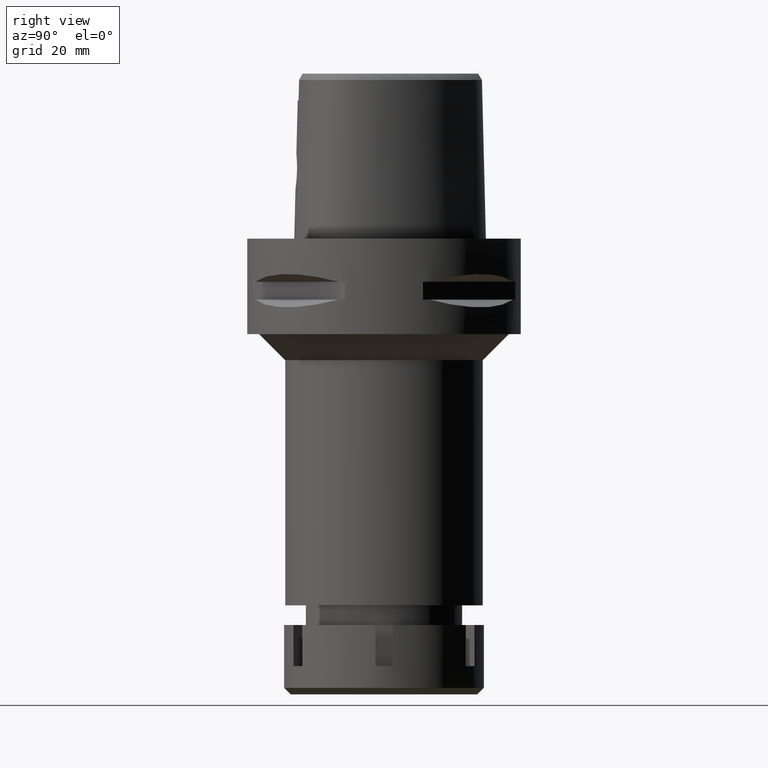
[diagram: clean part render]
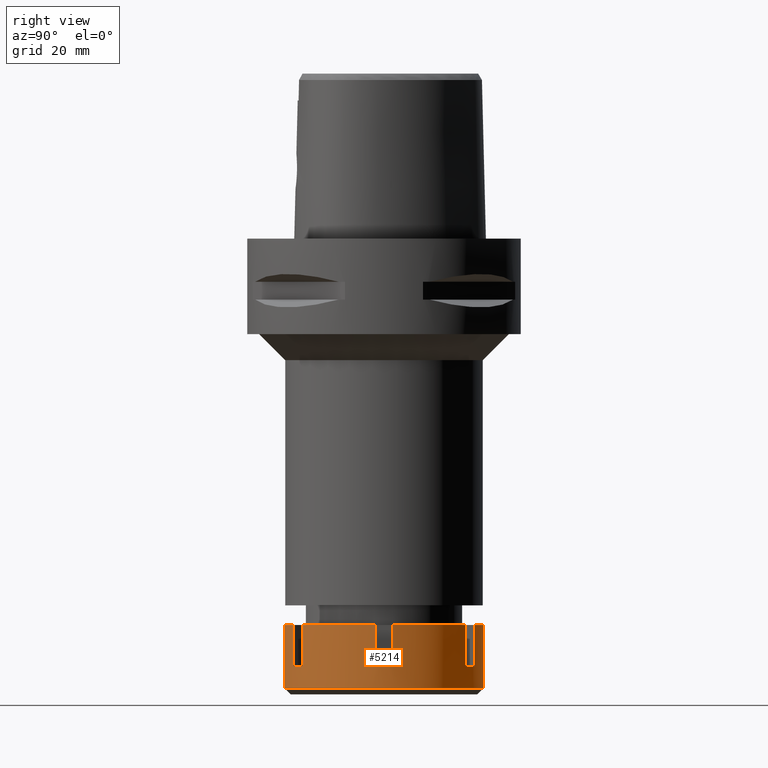
[diagram: same view with one face highlighted and labeled with its STEP entity id]
A machine part, right view. The second image highlights one B-rep face of the part: STEP entity #5214.
In plain terms, the highlighted cylindrical surface (partial cylindrical patch) has radius 23 mm, axis along (0, 0, -1).
Its self-contained STEP definition (entity closure, byte-faithful):
#37 = CIRCLE ( 'NONE', #5445, 23.00000000000000355 ) ;
#148 = VERTEX_POINT ( 'NONE', #921 ) ;
#167 = CARTESIAN_POINT ( 'NONE',  ( 13.18849004495999999, -18.84313483298000236, -9.500000000000000000 ) ) ;
#170 = CARTESIAN_POINT ( 'NONE',  ( 0.0000000000000000000, 23.00000000000000000, -14.50000000000000000 ) ) ;
#206 = VECTOR ( 'NONE', #2371, 1000.000000000000000 ) ;
#248 = LINE ( 'NONE', #4847, #206 ) ;
#267 = EDGE_CURVE ( 'NONE', #4211, #290, #2189, .T. ) ;
#290 = VERTEX_POINT ( 'NONE', #170 ) ;
#293 = EDGE_CURVE ( 'NONE', #4790, #713, #1665, .T. ) ;
#301 = AXIS2_PLACEMENT_3D ( 'NONE', #2869, #2781, #5415 ) ;
#311 = DIRECTION ( 'NONE',  ( 0.0000000000000000000, 0.0000000000000000000, -1.000000000000000000 ) ) ;
#316 = DIRECTION ( 'NONE',  ( 0.0000000000000000000, 0.0000000000000000000, -1.000000000000000000 ) ) ;
#428 = CARTESIAN_POINT ( 'NONE',  ( 9.724388429822001356, 20.84313483297999881, -9.500000000000000000 ) ) ;
#499 = DIRECTION ( 'NONE',  ( 0.9962121075990957308, 0.08695652173912968297, 0.0000000000000000000 ) ) ;
#524 = DIRECTION ( 'NONE',  ( 0.0000000000000000000, -1.000000000000000000, 0.0000000000000000000 ) ) ;
#566 = EDGE_CURVE ( 'NONE', #995, #4211, #2720, .T. ) ;
#574 = DIRECTION ( 'NONE',  ( 0.0000000000000000000, 0.0000000000000000000, -1.000000000000000000 ) ) ;
#603 = AXIS2_PLACEMENT_3D ( 'NONE', #2153, #316, #2465 ) ;
#634 = CARTESIAN_POINT ( 'NONE',  ( 9.724388429820001178, -20.84313483297999881, -9.500000000000000000 ) ) ;
#691 = CARTESIAN_POINT ( 'NONE',  ( 13.18849004495999999, -18.84313483298000236, -9.500000000000000000 ) ) ;
#707 = AXIS2_PLACEMENT_3D ( 'NONE', #900, #2275, #499 ) ;
#713 = VERTEX_POINT ( 'NONE', #5299 ) ;
#776 = DIRECTION ( 'NONE',  ( 0.0000000000000000000, 0.0000000000000000000, -1.000000000000000000 ) ) ;
#828 = CARTESIAN_POINT ( 'NONE',  ( 0.0000000000000000000, 0.0000000000000000000, -9.500000000000000000 ) ) ;
#845 = LINE ( 'NONE', #5198, #4835 ) ;
#900 = CARTESIAN_POINT ( 'NONE',  ( 0.0000000000000000000, 0.0000000000000000000, -9.500000000000000000 ) ) ;
#915 = ORIENTED_EDGE ( 'NONE', *, *, #293, .T. ) ;
#921 = CARTESIAN_POINT ( 'NONE',  ( 0.0000000000000000000, 23.00000000000000000, 0.0000000000000000000 ) ) ;
#948 = CARTESIAN_POINT ( 'NONE',  ( 0.0000000000000000000, 0.0000000000000000000, -14.50000000000000000 ) ) ;
#995 = VERTEX_POINT ( 'NONE', #1637 ) ;
#1118 = CARTESIAN_POINT ( 'NONE',  ( 0.0000000000000000000, -23.00000000000000000, -14.50000000000000000 ) ) ;
#1124 = VERTEX_POINT ( 'NONE', #3379 ) ;
#1249 = EDGE_CURVE ( 'NONE', #148, #290, #248, .T. ) ;
#1302 = AXIS2_PLACEMENT_3D ( 'NONE', #948, #4372, #524 ) ;
#1315 = ORIENTED_EDGE ( 'NONE', *, *, #1815, .F. ) ;
#1324 = DIRECTION ( 'NONE',  ( 0.0000000000000000000, 0.0000000000000000000, 1.000000000000000000 ) ) ;
#1325 = VERTEX_POINT ( 'NONE', #2714 ) ;
#1378 = CARTESIAN_POINT ( 'NONE',  ( 0.0000000000000000000, 0.0000000000000000000, 0.0000000000000000000 ) ) ;
#1399 = CIRCLE ( 'NONE', #1752, 23.00000000000000355 ) ;
#1430 = CARTESIAN_POINT ( 'NONE',  ( 13.18849004495999999, -18.84313483298000236, 0.0000000000000000000 ) ) ;
#1619 = CARTESIAN_POINT ( 'NONE',  ( 13.18849004495999999, 18.84313483298000236, 0.0000000000000000000 ) ) ;
#1637 = CARTESIAN_POINT ( 'NONE',  ( 0.0000000000000000000, -23.00000000000000000, 0.0000000000000000000 ) ) ;
#1665 = CIRCLE ( 'NONE', #301, 23.00000000000001066 ) ;
#1682 = DIRECTION ( 'NONE',  ( 0.0000000000000000000, 1.000000000000000000, 0.0000000000000000000 ) ) ;
#1734 = CARTESIAN_POINT ( 'NONE',  ( 0.0000000000000000000, 0.0000000000000000000, 0.0000000000000000000 ) ) ;
#1752 = AXIS2_PLACEMENT_3D ( 'NONE', #1734, #3456, #3518 ) ;
#1815 = EDGE_CURVE ( 'NONE', #2448, #713, #5458, .T. ) ;
#1816 = VERTEX_POINT ( 'NONE', #3334 ) ;
#1831 = EDGE_CURVE ( 'NONE', #1816, #995, #1399, .T. ) ;
#2006 = DIRECTION ( 'NONE',  ( 0.0000000000000000000, 0.0000000000000000000, -1.000000000000000000 ) ) ;
#2036 = VECTOR ( 'NONE', #2773, 1000.000000000000000 ) ;
#2040 = VECTOR ( 'NONE', #776, 1000.000000000000000 ) ;
#2047 = EDGE_LOOP ( 'NONE', ( #1315, #3062, #4921, #3375, #4770, #4928, #2366, #4332, #2993, #2063, #5411, #2427, #2846, #2849, #3137, #915 ) ) ;
#2052 = VECTOR ( 'NONE', #3809, 1000.000000000000000 ) ;
#2063 = ORIENTED_EDGE ( 'NONE', *, *, #1831, .T. ) ;
#2078 = CARTESIAN_POINT ( 'NONE',  ( 22.91287847478000117, -2.000000000000000000, -9.500000000000000000 ) ) ;
#2101 = CARTESIAN_POINT ( 'NONE',  ( 0.0000000000000000000, 0.0000000000000000000, 0.0000000000000000000 ) ) ;
#2153 = CARTESIAN_POINT ( 'NONE',  ( 0.0000000000000000000, 0.0000000000000000000, 0.0000000000000000000 ) ) ;
#2170 = VERTEX_POINT ( 'NONE', #2078 ) ;
#2189 = CIRCLE ( 'NONE', #1302, 23.00000000000000000 ) ;
#2255 = EDGE_CURVE ( 'NONE', #148, #1124, #4633, .T. ) ;
#2275 = DIRECTION ( 'NONE',  ( 0.0000000000000000000, 0.0000000000000000000, -1.000000000000000000 ) ) ;
#2366 = ORIENTED_EDGE ( 'NONE', *, *, #2559, .F. ) ;
#2371 = DIRECTION ( 'NONE',  ( 0.0000000000000000000, 0.0000000000000000000, -1.000000000000000000 ) ) ;
#2406 = CARTESIAN_POINT ( 'NONE',  ( 9.724388429823001445, 20.84313483297999881, -9.500000000000000000 ) ) ;
#2427 = ORIENTED_EDGE ( 'NONE', *, *, #267, .T. ) ;
#2445 = VERTEX_POINT ( 'NONE', #4875 ) ;
#2448 = VERTEX_POINT ( 'NONE', #4499 ) ;
#2465 = DIRECTION ( 'NONE',  ( 0.9962121075990957308, -0.08695652173912968297, 0.0000000000000000000 ) ) ;
#2543 = VERTEX_POINT ( 'NONE', #1430 ) ;
#2559 = EDGE_CURVE ( 'NONE', #4083, #2543, #4415, .T. ) ;
#2642 = DIRECTION ( 'NONE',  ( 0.0000000000000000000, 0.0000000000000000000, -1.000000000000000000 ) ) ;
#2699 = EDGE_CURVE ( 'NONE', #2448, #2445, #4354, .T. ) ;
#2706 = CARTESIAN_POINT ( 'NONE',  ( 22.91287847478000117, 2.000000000000000000, -9.500000000000000000 ) ) ;
#2714 = CARTESIAN_POINT ( 'NONE',  ( 22.91287847478000117, -2.000000000000000000, 0.0000000000000000000 ) ) ;
#2716 = EDGE_CURVE ( 'NONE', #4083, #4206, #37, .T. ) ;
#2720 = LINE ( 'NONE', #3996, #2924 ) ;
#2773 = DIRECTION ( 'NONE',  ( 0.0000000000000000000, 0.0000000000000000000, 1.000000000000000000 ) ) ;
#2776 = EDGE_CURVE ( 'NONE', #1816, #4206, #4587, .T. ) ;
#2781 = DIRECTION ( 'NONE',  ( 0.0000000000000000000, 0.0000000000000000000, -1.000000000000000000 ) ) ;
#2846 = ORIENTED_EDGE ( 'NONE', *, *, #1249, .F. ) ;
#2849 = ORIENTED_EDGE ( 'NONE', *, *, #2255, .T. ) ;
#2860 = CARTESIAN_POINT ( 'NONE',  ( 0.0000000000000000000, 0.0000000000000000000, 0.0000000000000000000 ) ) ;
#2869 = CARTESIAN_POINT ( 'NONE',  ( 0.0000000000000000000, 0.0000000000000000000, -9.500000000000000000 ) ) ;
#2924 = VECTOR ( 'NONE', #574, 1000.000000000000000 ) ;
#2965 = CARTESIAN_POINT ( 'NONE',  ( 9.724388429820001178, -20.84313483297999881, 0.0000000000000000000 ) ) ;
#2993 = ORIENTED_EDGE ( 'NONE', *, *, #2776, .F. ) ;
#3062 = ORIENTED_EDGE ( 'NONE', *, *, #2699, .T. ) ;
#3095 = DIRECTION ( 'NONE',  ( 0.0000000000000000000, 0.0000000000000000000, -1.000000000000000000 ) ) ;
#3128 = FACE_OUTER_BOUND ( 'NONE', #2047, .T. ) ;
#3135 = CIRCLE ( 'NONE', #707, 23.00000000000000355 ) ;
#3137 = ORIENTED_EDGE ( 'NONE', *, *, #4271, .F. ) ;
#3312 = DIRECTION ( 'NONE',  ( 0.0000000000000000000, 0.0000000000000000000, -1.000000000000000000 ) ) ;
#3334 = CARTESIAN_POINT ( 'NONE',  ( 9.724388429820001178, -20.84313483297999881, 0.0000000000000000000 ) ) ;
#3375 = ORIENTED_EDGE ( 'NONE', *, *, #5098, .T. ) ;
#3379 = CARTESIAN_POINT ( 'NONE',  ( 9.724388429822001356, 20.84313483297999881, 0.0000000000000000000 ) ) ;
#3456 = DIRECTION ( 'NONE',  ( 0.0000000000000000000, 0.0000000000000000000, -1.000000000000000000 ) ) ;
#3518 = DIRECTION ( 'NONE',  ( 0.4227994969487119392, -0.9062232536080258027, 0.0000000000000000000 ) ) ;
#3628 = LINE ( 'NONE', #3974, #4287 ) ;
#3752 = DIRECTION ( 'NONE',  ( 0.5734126106504978670, -0.8192667318687978373, 0.0000000000000000000 ) ) ;
#3809 = DIRECTION ( 'NONE',  ( 0.0000000000000000000, 0.0000000000000000000, 1.000000000000000000 ) ) ;
#3812 = DIRECTION ( 'NONE',  ( 0.0000000000000000000, 0.0000000000000000000, -1.000000000000000000 ) ) ;
#3974 = CARTESIAN_POINT ( 'NONE',  ( 22.91287847478000117, -2.000000000000000000, 0.0000000000000000000 ) ) ;
#3996 = CARTESIAN_POINT ( 'NONE',  ( 0.0000000000000000000, -23.00000000000000000, 0.0000000000000000000 ) ) ;
#4083 = VERTEX_POINT ( 'NONE', #167 ) ;
#4162 = DIRECTION ( 'NONE',  ( 0.5734126106503841802, 0.8192667318688773292, 0.0000000000000000000 ) ) ;
#4173 = VECTOR ( 'NONE', #2006, 1000.000000000000000 ) ;
#4206 = VERTEX_POINT ( 'NONE', #634 ) ;
#4211 = VERTEX_POINT ( 'NONE', #1118 ) ;
#4232 = EDGE_CURVE ( 'NONE', #1325, #2543, #5533, .T. ) ;
#4271 = EDGE_CURVE ( 'NONE', #4790, #1124, #5468, .T. ) ;
#4287 = VECTOR ( 'NONE', #2642, 1000.000000000000000 ) ;
#4332 = ORIENTED_EDGE ( 'NONE', *, *, #2716, .T. ) ;
#4348 = AXIS2_PLACEMENT_3D ( 'NONE', #2101, #3812, #1682 ) ;
#4354 = CIRCLE ( 'NONE', #5167, 22.99999999999999289 ) ;
#4372 = DIRECTION ( 'NONE',  ( 0.0000000000000000000, 0.0000000000000000000, 1.000000000000000000 ) ) ;
#4415 = LINE ( 'NONE', #691, #2036 ) ;
#4461 = DIRECTION ( 'NONE',  ( 0.0000000000000000000, -1.000000000000000000, 0.0000000000000000000 ) ) ;
#4499 = CARTESIAN_POINT ( 'NONE',  ( 13.18849004495999999, 18.84313483298000236, 0.0000000000000000000 ) ) ;
#4587 = LINE ( 'NONE', #2965, #2040 ) ;
#4633 = CIRCLE ( 'NONE', #4348, 23.00000000000000000 ) ;
#4770 = ORIENTED_EDGE ( 'NONE', *, *, #5133, .F. ) ;
#4790 = VERTEX_POINT ( 'NONE', #2406 ) ;
#4835 = VECTOR ( 'NONE', #1324, 1000.000000000000000 ) ;
#4847 = CARTESIAN_POINT ( 'NONE',  ( 0.0000000000000000000, 23.00000000000000000, 0.0000000000000000000 ) ) ;
#4875 = CARTESIAN_POINT ( 'NONE',  ( 22.91287847478000117, 2.000000000000000000, 0.0000000000000000000 ) ) ;
#4921 = ORIENTED_EDGE ( 'NONE', *, *, #5064, .F. ) ;
#4928 = ORIENTED_EDGE ( 'NONE', *, *, #4232, .T. ) ;
#5064 = EDGE_CURVE ( 'NONE', #5289, #2445, #845, .T. ) ;
#5098 = EDGE_CURVE ( 'NONE', #5289, #2170, #3135, .T. ) ;
#5133 = EDGE_CURVE ( 'NONE', #1325, #2170, #3628, .T. ) ;
#5167 = AXIS2_PLACEMENT_3D ( 'NONE', #2860, #311, #4162 ) ;
#5185 = AXIS2_PLACEMENT_3D ( 'NONE', #1378, #3095, #4461 ) ;
#5198 = CARTESIAN_POINT ( 'NONE',  ( 22.91287847478000117, 2.000000000000000000, -9.500000000000000000 ) ) ;
#5214 = ADVANCED_FACE ( 'NONE', ( #3128 ), #5281, .T. ) ;
#5281 = CYLINDRICAL_SURFACE ( 'NONE', #5185, 23.00000000000000000 ) ;
#5289 = VERTEX_POINT ( 'NONE', #2706 ) ;
#5299 = CARTESIAN_POINT ( 'NONE',  ( 13.18849004495999999, 18.84313483298000236, -9.500000000000000000 ) ) ;
#5411 = ORIENTED_EDGE ( 'NONE', *, *, #566, .T. ) ;
#5415 = DIRECTION ( 'NONE',  ( 0.4227994969487938182, 0.9062232536079875000, 0.0000000000000000000 ) ) ;
#5445 = AXIS2_PLACEMENT_3D ( 'NONE', #828, #3312, #3752 ) ;
#5458 = LINE ( 'NONE', #1619, #4173 ) ;
#5468 = LINE ( 'NONE', #428, #2052 ) ;
#5533 = CIRCLE ( 'NONE', #603, 23.00000000000000355 ) ;